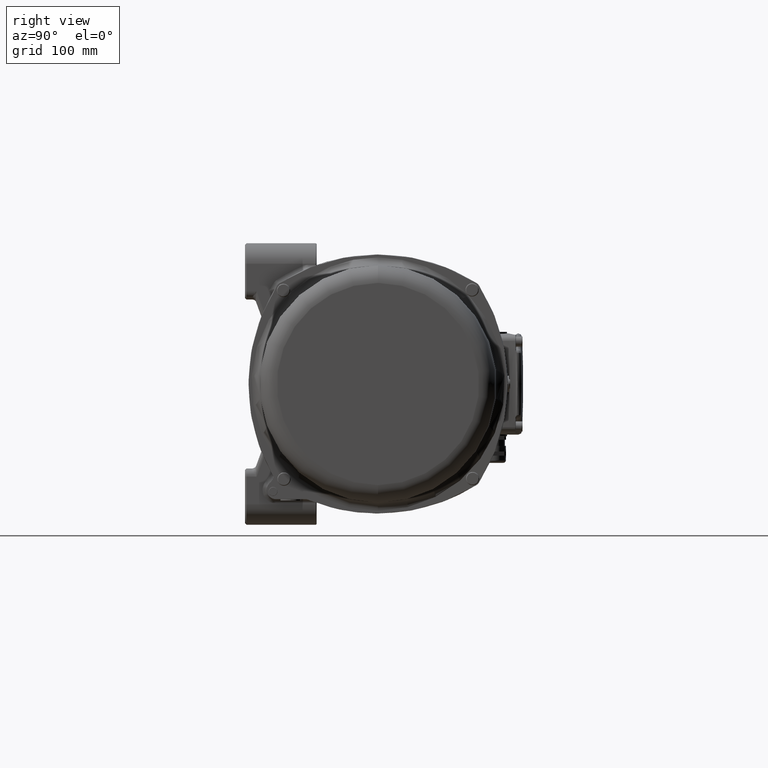
[diagram: clean part render]
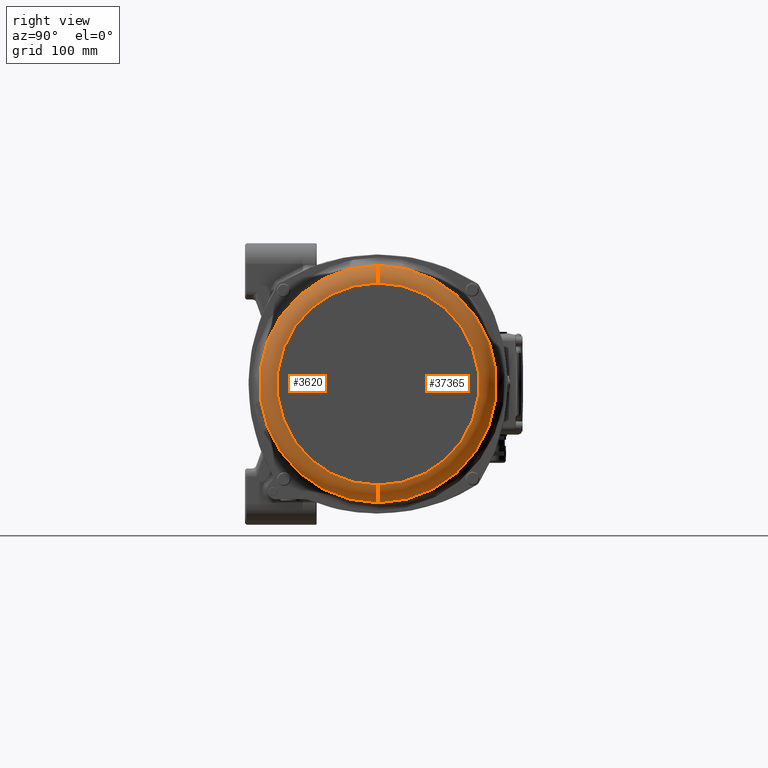
[diagram: same view with one multi-face feature highlighted, each face labeled with its STEP entity id]
A machine part, right view. The highlighted faces form ONE feature: a constant-radius fillet chain: 2 tangent blend faces with common blend radius 17.2 mm. The faces share edges in the B-rep.
Their STEP definitions:
[1] entity #37365 (Torus):
#4616 = CARTESIAN_POINT ( 'NONE',  ( 283.3000000000000100, 1.419977963611356200E-014, -115.9500000000000000 ) ) ;
#8462 = DIRECTION ( 'NONE',  ( 0.0000000000000000000, 1.000000000000000000, 1.224646799147353200E-016 ) ) ;
#10117 = EDGE_LOOP ( 'NONE', ( #94053, #23499, #84853, #111855 ) ) ;
#17688 = DIRECTION ( 'NONE',  ( 0.0000000000000000000, 0.0000000000000000000, 1.000000000000000000 ) ) ;
#22562 = CIRCLE ( 'NONE', #48443, 17.19999999999999200 ) ;
#23499 = ORIENTED_EDGE ( 'NONE', *, *, #25303, .T. ) ;
#24971 = CIRCLE ( 'NONE', #74662, 115.9500000000000000 ) ;
#25303 = EDGE_CURVE ( 'NONE', #73577, #91707, #22562, .T. ) ;
#27028 = CIRCLE ( 'NONE', #90548, 98.75000000000000000 ) ;
#27297 = DIRECTION ( 'NONE',  ( -1.000000000000000000, 0.0000000000000000000, 0.0000000000000000000 ) ) ;
#37365 = ADVANCED_FACE ( 'NONE', ( #44172 ), #120986, .T. ) ;
#38548 = EDGE_CURVE ( 'NONE', #66194, #82266, #125350, .T. ) ;
#39541 = CARTESIAN_POINT ( 'NONE',  ( 283.3000000000000100, 0.0000000000000000000, 115.9500000000000000 ) ) ;
#41595 = CARTESIAN_POINT ( 'NONE',  ( 300.5000000000000000, 0.0000000000000000000, 98.75000000000000000 ) ) ;
#42540 = CARTESIAN_POINT ( 'NONE',  ( 300.5000000000000000, 0.0000000000000000000, 0.0000000000000000000 ) ) ;
#44172 = FACE_OUTER_BOUND ( 'NONE', #10117, .T. ) ;
#48443 = AXIS2_PLACEMENT_3D ( 'NONE', #127241, #8462, #67156 ) ;
#52632 = CARTESIAN_POINT ( 'NONE',  ( 283.3000000000000100, 0.0000000000000000000, 98.75000000000000000 ) ) ;
#62824 = AXIS2_PLACEMENT_3D ( 'NONE', #95203, #105304, #117567 ) ;
#63966 = EDGE_CURVE ( 'NONE', #82266, #91707, #24971, .T. ) ;
#66194 = VERTEX_POINT ( 'NONE', #41595 ) ;
#67156 = DIRECTION ( 'NONE',  ( 0.0000000000000000000, -1.224646799147353900E-016, 1.000000000000000000 ) ) ;
#73577 = VERTEX_POINT ( 'NONE', #99309 ) ;
#74662 = AXIS2_PLACEMENT_3D ( 'NONE', #87747, #27297, #17688 ) ;
#82266 = VERTEX_POINT ( 'NONE', #39541 ) ;
#82388 = DIRECTION ( 'NONE',  ( 0.0000000000000000000, 0.0000000000000000000, 1.000000000000000000 ) ) ;
#83322 = DIRECTION ( 'NONE',  ( 0.0000000000000000000, 0.0000000000000000000, -1.000000000000000000 ) ) ;
#84853 = ORIENTED_EDGE ( 'NONE', *, *, #63966, .F. ) ;
#87747 = CARTESIAN_POINT ( 'NONE',  ( 283.3000000000000100, 0.0000000000000000000, 0.0000000000000000000 ) ) ;
#90548 = AXIS2_PLACEMENT_3D ( 'NONE', #42540, #92506, #82388 ) ;
#91707 = VERTEX_POINT ( 'NONE', #4616 ) ;
#92506 = DIRECTION ( 'NONE',  ( -1.000000000000000000, 0.0000000000000000000, 0.0000000000000000000 ) ) ;
#94053 = ORIENTED_EDGE ( 'NONE', *, *, #118048, .T. ) ;
#95203 = CARTESIAN_POINT ( 'NONE',  ( 283.3000000000000100, 0.0000000000000000000, 0.0000000000000000000 ) ) ;
#99309 = CARTESIAN_POINT ( 'NONE',  ( 300.5000000000000000, 1.314658338884683800E-014, -98.75000000000000000 ) ) ;
#105304 = DIRECTION ( 'NONE',  ( -1.000000000000000000, 0.0000000000000000000, 0.0000000000000000000 ) ) ;
#111855 = ORIENTED_EDGE ( 'NONE', *, *, #38548, .F. ) ;
#115897 = AXIS2_PLACEMENT_3D ( 'NONE', #52632, #122800, #83322 ) ;
#117567 = DIRECTION ( 'NONE',  ( 0.0000000000000000000, 0.0000000000000000000, 1.000000000000000000 ) ) ;
#118048 = EDGE_CURVE ( 'NONE', #66194, #73577, #27028, .T. ) ;
#120986 = TOROIDAL_SURFACE ( 'NONE', #62824, 98.75000000000000000, 17.19999999999999900 ) ;
#122800 = DIRECTION ( 'NONE',  ( 0.0000000000000000000, -1.000000000000000000, 0.0000000000000000000 ) ) ;
#125350 = CIRCLE ( 'NONE', #115897, 17.19999999999999200 ) ;
#127241 = CARTESIAN_POINT ( 'NONE',  ( 283.3000000000000100, 1.209338714158011300E-014, -98.75000000000000000 ) ) ;
[2] entity #3620 (Torus):
#3620 = ADVANCED_FACE ( 'NONE', ( #4594 ), #128474, .T. ) ;
#4594 = FACE_OUTER_BOUND ( 'NONE', #69203, .T. ) ;
#4616 = CARTESIAN_POINT ( 'NONE',  ( 283.3000000000000100, 1.419977963611356200E-014, -115.9500000000000000 ) ) ;
#6868 = CARTESIAN_POINT ( 'NONE',  ( 283.3000000000000100, 0.0000000000000000000, 0.0000000000000000000 ) ) ;
#8462 = DIRECTION ( 'NONE',  ( 0.0000000000000000000, 1.000000000000000000, 1.224646799147353200E-016 ) ) ;
#14420 = AXIS2_PLACEMENT_3D ( 'NONE', #127381, #106406, #76949 ) ;
#22562 = CIRCLE ( 'NONE', #48443, 17.19999999999999200 ) ;
#24259 = ORIENTED_EDGE ( 'NONE', *, *, #38548, .T. ) ;
#25303 = EDGE_CURVE ( 'NONE', #73577, #91707, #22562, .T. ) ;
#26739 = DIRECTION ( 'NONE',  ( 0.0000000000000000000, 0.0000000000000000000, 1.000000000000000000 ) ) ;
#31787 = CIRCLE ( 'NONE', #102688, 115.9500000000000000 ) ;
#38548 = EDGE_CURVE ( 'NONE', #66194, #82266, #125350, .T. ) ;
#39541 = CARTESIAN_POINT ( 'NONE',  ( 283.3000000000000100, 0.0000000000000000000, 115.9500000000000000 ) ) ;
#41595 = CARTESIAN_POINT ( 'NONE',  ( 300.5000000000000000, 0.0000000000000000000, 98.75000000000000000 ) ) ;
#45056 = EDGE_CURVE ( 'NONE', #73577, #66194, #75905, .T. ) ;
#48443 = AXIS2_PLACEMENT_3D ( 'NONE', #127241, #8462, #67156 ) ;
#52632 = CARTESIAN_POINT ( 'NONE',  ( 283.3000000000000100, 0.0000000000000000000, 98.75000000000000000 ) ) ;
#55860 = DIRECTION ( 'NONE',  ( 0.0000000000000000000, 0.0000000000000000000, 1.000000000000000000 ) ) ;
#57004 = EDGE_CURVE ( 'NONE', #91707, #82266, #31787, .T. ) ;
#65050 = ORIENTED_EDGE ( 'NONE', *, *, #45056, .T. ) ;
#66194 = VERTEX_POINT ( 'NONE', #41595 ) ;
#66370 = DIRECTION ( 'NONE',  ( -1.000000000000000000, 0.0000000000000000000, 0.0000000000000000000 ) ) ;
#67156 = DIRECTION ( 'NONE',  ( 0.0000000000000000000, -1.224646799147353900E-016, 1.000000000000000000 ) ) ;
#69203 = EDGE_LOOP ( 'NONE', ( #89875, #65050, #24259, #97415 ) ) ;
#73577 = VERTEX_POINT ( 'NONE', #99309 ) ;
#75361 = DIRECTION ( 'NONE',  ( -1.000000000000000000, 0.0000000000000000000, 0.0000000000000000000 ) ) ;
#75905 = CIRCLE ( 'NONE', #14420, 98.75000000000000000 ) ;
#76949 = DIRECTION ( 'NONE',  ( 0.0000000000000000000, 0.0000000000000000000, 1.000000000000000000 ) ) ;
#82266 = VERTEX_POINT ( 'NONE', #39541 ) ;
#83322 = DIRECTION ( 'NONE',  ( 0.0000000000000000000, 0.0000000000000000000, -1.000000000000000000 ) ) ;
#89875 = ORIENTED_EDGE ( 'NONE', *, *, #25303, .F. ) ;
#91707 = VERTEX_POINT ( 'NONE', #4616 ) ;
#97415 = ORIENTED_EDGE ( 'NONE', *, *, #57004, .F. ) ;
#99309 = CARTESIAN_POINT ( 'NONE',  ( 300.5000000000000000, 1.314658338884683800E-014, -98.75000000000000000 ) ) ;
#102688 = AXIS2_PLACEMENT_3D ( 'NONE', #106085, #75361, #26739 ) ;
#106085 = CARTESIAN_POINT ( 'NONE',  ( 283.3000000000000100, 0.0000000000000000000, 0.0000000000000000000 ) ) ;
#106406 = DIRECTION ( 'NONE',  ( -1.000000000000000000, 0.0000000000000000000, 0.0000000000000000000 ) ) ;
#112209 = AXIS2_PLACEMENT_3D ( 'NONE', #6868, #66370, #55860 ) ;
#115897 = AXIS2_PLACEMENT_3D ( 'NONE', #52632, #122800, #83322 ) ;
#122800 = DIRECTION ( 'NONE',  ( 0.0000000000000000000, -1.000000000000000000, 0.0000000000000000000 ) ) ;
#125350 = CIRCLE ( 'NONE', #115897, 17.19999999999999200 ) ;
#127241 = CARTESIAN_POINT ( 'NONE',  ( 283.3000000000000100, 1.209338714158011300E-014, -98.75000000000000000 ) ) ;
#127381 = CARTESIAN_POINT ( 'NONE',  ( 300.5000000000000000, 0.0000000000000000000, 0.0000000000000000000 ) ) ;
#128474 = TOROIDAL_SURFACE ( 'NONE', #112209, 98.75000000000000000, 17.19999999999999900 ) ;